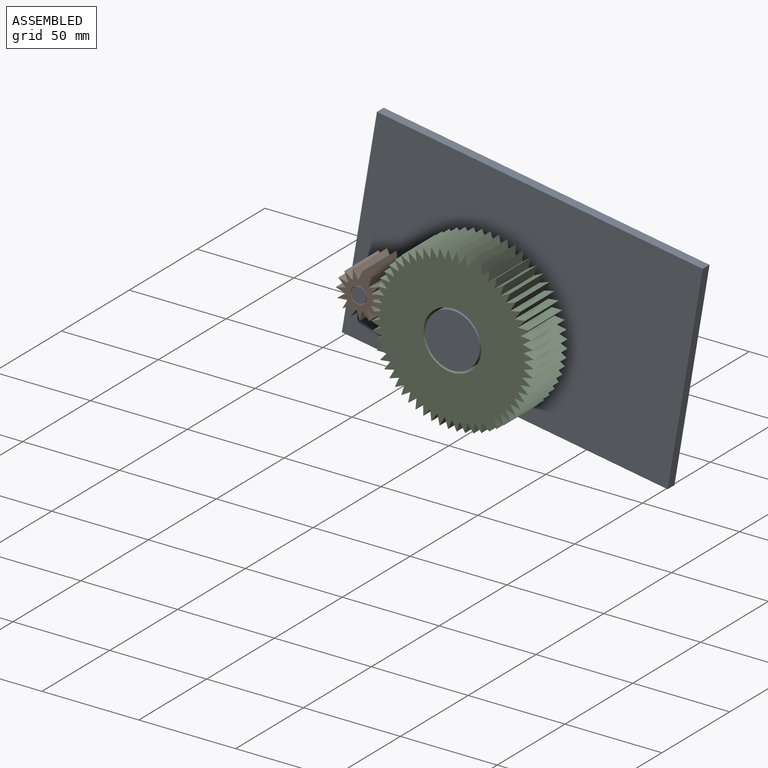
[diagram: assembled view]
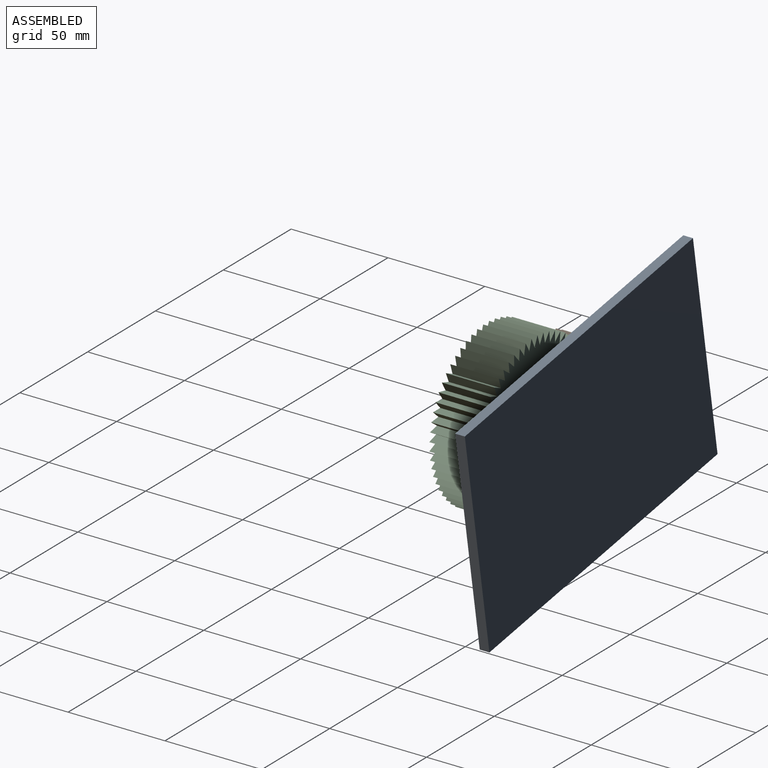
[diagram: assembled view, second angle]
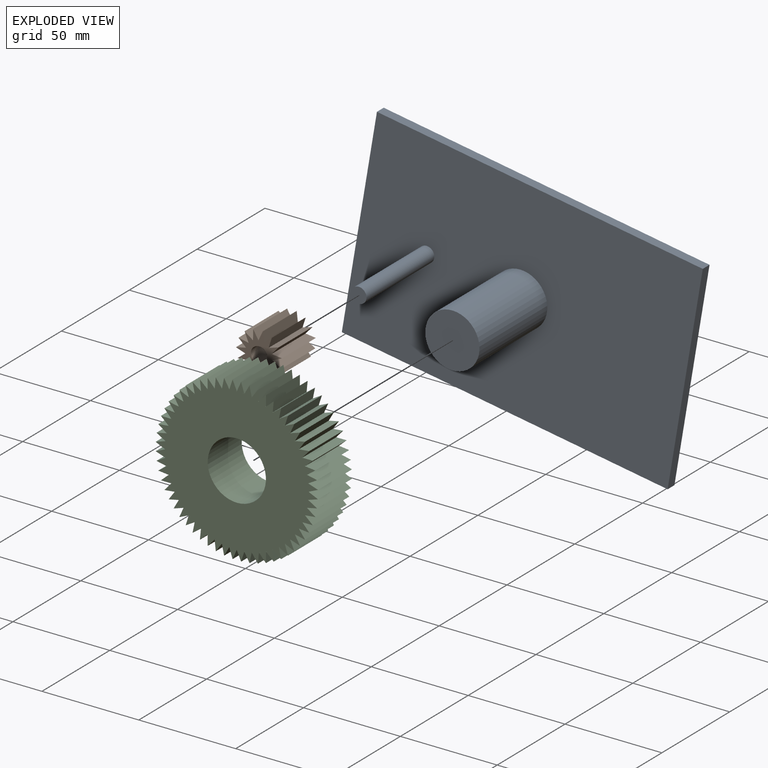
[diagram: exploded view]
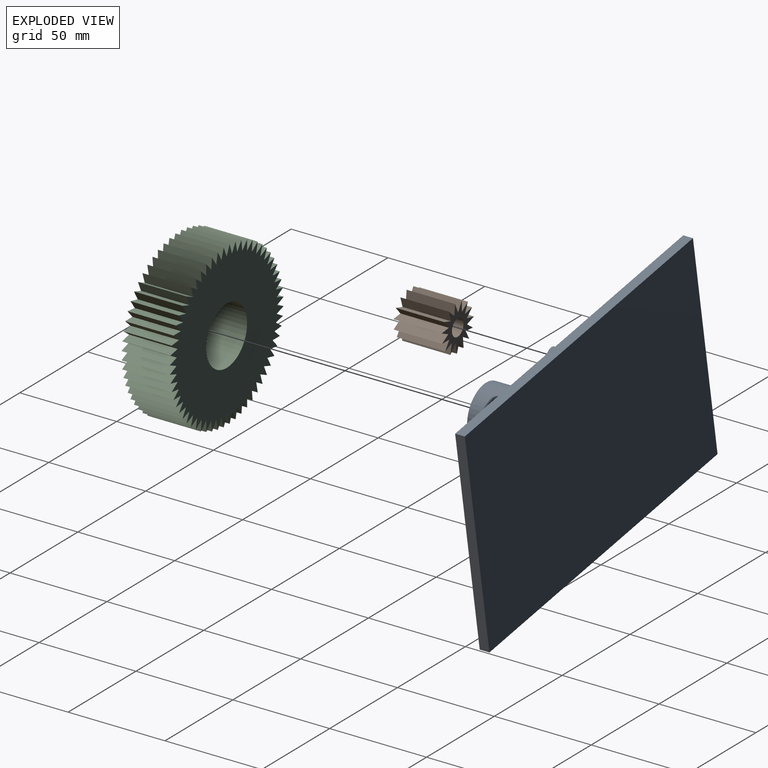
[diagram: exploded view, second angle]
ASSEMBLY  parts=3 mates=4
PART A: 10 faces, bbox 170.6x55x109.2 mm
  f0: plane 109.18x5mm, normal (1,0,0), area 545.9mm2, adj f1,f3,f4,f5
  f1: plane 170.56x5mm, normal (0,0,1), area 852.8mm2, adj f0,f2,f4,f5
  f2: plane 109.18x5mm, normal (-1,0,0), area 545.9mm2, adj f1,f3,f4,f5
  f3: plane 170.56x5mm, normal (0,0,-1), area 852.8mm2, adj f0,f2,f4,f5
  f4: plane 170.56x109.18mm, normal (0,-1,0), area 17955.5mm2, adj f0,f1,f2,f3,f6,f8
  f5: plane 170.56x109.18mm, normal (0,1,0), area 18621.6mm2, adj f0,f1,f2,f3
  f6: cylinder r=4mm len=50mm, axis (0,1,0), area 1256.6mm2, adj f4,f7
  f7: plane 8x8mm, normal (0,-1,0), area 50.3mm2, adj f6
  f8: cylinder r=14mm len=50mm, axis (0,1,0), area 4398.2mm2, adj f4,f9
  f9: plane 28x28mm, normal (0,-1,0), area 615.8mm2, adj f8
PART B: 78 faces, bbox 23.8x25x23.6 mm
  f0: cylinder r=6.94mm len=25mm, axis (0,1,0), area 3.8mm2, adj f15,f16,f18,f73
  f1: cylinder r=6.94mm len=25mm, axis (0,1,0), area 3.8mm2, adj f15,f16,f69,f74
  f2: cylinder r=6.94mm len=25mm, axis (0,1,0), area 3.8mm2, adj f15,f16,f65,f70
  f3: cylinder r=6.94mm len=25mm, axis (0,1,0), area 3.8mm2, adj f15,f16,f61,f66
  f4: cylinder r=6.94mm len=25mm, axis (0,1,0), area 3.8mm2, adj f15,f16,f57,f62
  f5: cylinder r=6.94mm len=25mm, axis (0,1,0), area 3.8mm2, adj f15,f16,f53,f58
  f6: cylinder r=6.94mm len=25mm, axis (0,1,0), area 3.8mm2, adj f15,f16,f49,f54
  f7: cylinder r=6.94mm len=25mm, axis (0,1,0), area 3.8mm2, adj f15,f16,f45,f50
  f8: cylinder r=6.94mm len=25mm, axis (0,1,0), area 3.8mm2, adj f15,f16,f41,f46
  f9: cylinder r=6.94mm len=25mm, axis (0,1,0), area 3.8mm2, adj f15,f16,f37,f42
  f10: cylinder r=6.94mm len=25mm, axis (0,1,0), area 3.8mm2, adj f15,f16,f33,f38
  f11: cylinder r=6.94mm len=25mm, axis (0,1,0), area 3.8mm2, adj f15,f16,f29,f34
  f12: cylinder r=6.94mm len=25mm, axis (0,1,0), area 3.8mm2, adj f15,f16,f25,f30
  f13: cylinder r=6.94mm len=25mm, axis (0,1,0), area 3.8mm2, adj f15,f16,f21,f26
  f14: cylinder r=6.94mm len=25mm, axis (0,1,0), area 3.8mm2, adj f15,f16,f17,f22
  f15: plane 23.75x23.62mm, normal (0,-1,0), area 202.3mm2, adj f0,f1,f2,f3,f4,f5,f6,f7
  f16: plane 23.75x23.62mm, normal (0,1,0), area 202.3mm2, adj f0,f1,f2,f3,f4,f5,f6,f7
  f17: plane 25x0.13mm, normal (0.01,0,-1), area 3.1mm2, adj f14,f15,f16,f19
  f18: plane 25x0.03mm, normal (0.01,0,-1), area 0.7mm2, adj f0,f15,f16,f20
  f19: plane 25x5.13mm, normal (0.96,0,0.27), area 133.2mm2, adj f15,f16,f17,f20
  f20: plane 25x5.14mm, normal (-0.96,0,0.27), area 133.6mm2, adj f15,f16,f18,f19
  f21: plane 25x0.12mm, normal (-0.4,0,-0.92), area 3.1mm2, adj f13,f15,f16,f23
  f22: plane 25x0.03mm, normal (-0.4,0,-0.92), area 0.7mm2, adj f14,f15,f16,f24
  f23: plane 25x5.27mm, normal (0.99,0,-0.14), area 133.2mm2, adj f15,f16,f21,f24
  f24: plane 25x4.11mm, normal (-0.77,0,0.64), area 133.6mm2, adj f15,f16,f22,f23
  f25: plane 25x0.09mm, normal (-0.74,0,-0.67), area 3.1mm2, adj f12,f15,f16,f27
  f26: plane 25x0.02mm, normal (-0.74,0,-0.67), area 0.7mm2, adj f13,f15,f16,f28
  f27: plane 25x4.51mm, normal (0.85,0,-0.53), area 133.2mm2, adj f15,f16,f25,f28
  f28: plane 25x4.79mm, normal (-0.44,0,0.9), area 133.6mm2, adj f15,f16,f26,f27
  f29: plane 25x0.12mm, normal (-0.95,0,-0.32), area 3.1mm2, adj f11,f15,f16,f31
  f30: plane 25x0.03mm, normal (-0.95,0,-0.32), area 0.7mm2, adj f12,f15,f16,f32
  f31: plane 25x4.43mm, normal (0.56,0,-0.83), area 133.2mm2, adj f15,f16,f29,f32
  f32: plane 25x5.34mm, normal (-0.04,0,1), area 133.6mm2, adj f15,f16,f30,f31
  f33: plane 25x0.13mm, normal (-1,0,0.1), area 3.1mm2, adj f10,f15,f16,f35
  f34: plane 25x0.03mm, normal (-1,0,0.1), area 0.7mm2, adj f11,f15,f16,f36
  f35: plane 25x5.25mm, normal (0.17,0,-0.99), area 133.2mm2, adj f15,f16,f33,f36
  f36: plane 25x4.97mm, normal (0.37,0,0.93), area 133.6mm2, adj f15,f16,f34,f35
  f37: plane 25x0.11mm, normal (-0.87,0,0.49), area 3.1mm2, adj f9,f15,f16,f39
  f38: plane 25x0.02mm, normal (-0.87,0,0.49), area 0.7mm2, adj f10,f15,f16,f40
  f39: plane 25x5.16mm, normal (-0.25,0,-0.97), area 133.2mm2, adj f15,f16,f37,f40
  f40: plane 25x3.82mm, normal (0.72,0,0.7), area 133.6mm2, adj f15,f16,f38,f39
  f41: plane 25x0.1mm, normal (-0.59,0,0.81), area 3.1mm2, adj f8,f15,f16,f43
  f42: plane 25x0.02mm, normal (-0.59,0,0.81), area 0.7mm2, adj f9,f15,f16,f44
  f43: plane 25x4.19mm, normal (-0.62,0,-0.79), area 133.2mm2, adj f15,f16,f41,f44
  f44: plane 25x5.01mm, normal (0.94,0,0.35), area 133.6mm2, adj f15,f16,f42,f43
  f45: plane 25x0.12mm, normal (-0.21,0,0.98), area 3.1mm2, adj f7,f15,f16,f47
  f46: plane 25x0.03mm, normal (-0.21,0,0.98), area 0.7mm2, adj f8,f15,f16,f48
  f47: plane 25x4.71mm, normal (-0.88,0,-0.47), area 133.2mm2, adj f15,f16,f45,f48
  f48: plane 25x5.33mm, normal (1,0,-0.06), area 133.6mm2, adj f15,f16,f46,f47
  f49: plane 25x0.12mm, normal (0.2,0,0.98), area 3.1mm2, adj f6,f15,f16,f51
  f50: plane 25x0.03mm, normal (0.2,0,0.98), area 0.7mm2, adj f7,f15,f16,f52
  f51: plane 25x5.31mm, normal (-1,0,-0.07), area 133.2mm2, adj f15,f16,f49,f52
  f52: plane 25x4.73mm, normal (0.89,0,-0.46), area 133.6mm2, adj f15,f16,f50,f51
  f53: plane 25x0.1mm, normal (0.58,0,0.81), area 3.1mm2, adj f5,f15,f16,f55
  f54: plane 25x0.02mm, normal (0.58,0,0.81), area 0.7mm2, adj f6,f15,f16,f56
  f55: plane 25x5mm, normal (-0.94,0,0.35), area 133.2mm2, adj f15,f16,f53,f56
  f56: plane 25x4.19mm, normal (0.62,0,-0.78), area 133.6mm2, adj f15,f16,f54,f55
  f57: plane 25x0.11mm, normal (0.86,0,0.51), area 3.1mm2, adj f4,f15,f16,f59
  f58: plane 25x0.02mm, normal (0.86,0,0.51), area 0.7mm2, adj f5,f15,f16,f60
  f59: plane 25x3.82mm, normal (-0.72,0,0.7), area 133.2mm2, adj f15,f16,f57,f60
  f60: plane 25x5.18mm, normal (0.25,0,-0.97), area 133.6mm2, adj f15,f16,f58,f59
  f61: plane 25x0.12mm, normal (0.99,0,0.11), area 3.1mm2, adj f3,f15,f16,f63
  f62: plane 25x0.03mm, normal (0.99,0,0.11), area 0.7mm2, adj f4,f15,f16,f64
  f63: plane 25x4.95mm, normal (-0.37,0,0.93), area 133.2mm2, adj f15,f16,f61,f64
  f64: plane 25x5.27mm, normal (-0.17,0,-0.99), area 133.6mm2, adj f15,f16,f62,f63
  f65: plane 25x0.12mm, normal (0.95,0,-0.3), area 3.1mm2, adj f2,f15,f16,f67
  f66: plane 25x0.03mm, normal (0.95,0,-0.3), area 0.7mm2, adj f3,f15,f16,f68
  f67: plane 25x5.32mm, normal (0.04,0,1), area 133.2mm2, adj f15,f16,f65,f68
  f68: plane 25x4.45mm, normal (-0.55,0,-0.83), area 133.6mm2, adj f15,f16,f66,f67
  f69: plane 25x0.09mm, normal (0.75,0,-0.66), area 3.1mm2, adj f1,f15,f16,f71
  f70: plane 25x0.02mm, normal (0.75,0,-0.66), area 0.7mm2, adj f2,f15,f16,f72
  f71: plane 25x4.78mm, normal (0.44,0,0.9), area 133.2mm2, adj f15,f16,f69,f72
  f72: plane 25x4.52mm, normal (-0.85,0,-0.53), area 133.6mm2, adj f15,f16,f70,f71
  f73: plane 25x0.11mm, normal (0.41,0,-0.91), area 3.1mm2, adj f0,f15,f16,f75
  f74: plane 25x0.03mm, normal (0.41,0,-0.91), area 0.7mm2, adj f1,f15,f16,f76
  f75: plane 25x4.09mm, normal (0.77,0,0.64), area 133.2mm2, adj f15,f16,f73,f76
  f76: plane 25x5.29mm, normal (-0.99,0,-0.14), area 133.6mm2, adj f15,f16,f74,f75
  f77: cylinder r=4.25mm len=25mm, axis (0,1,0), area 667.6mm2, adj f15,f16
PART C: 243 faces, bbox 83.8x25x83.8 mm
  f0: cylinder r=37mm len=25mm, axis (0,1,0), area 19mm2, adj f60,f61,f63,f239
  f1: cylinder r=37mm len=25mm, axis (0,1,0), area 19mm2, adj f60,f61,f236,f240
  f2: cylinder r=37mm len=25mm, axis (0,1,0), area 19mm2, adj f60,f61,f233,f237
  f3: cylinder r=37mm len=25mm, axis (0,1,0), area 19mm2, adj f60,f61,f230,f234
  f4: cylinder r=37mm len=25mm, axis (0,1,0), area 19mm2, adj f60,f61,f227,f231
  f5: cylinder r=37mm len=25mm, axis (0,1,0), area 19mm2, adj f60,f61,f224,f228
  f6: cylinder r=37mm len=25mm, axis (0,1,0), area 19mm2, adj f60,f61,f221,f225
  f7: cylinder r=37mm len=25mm, axis (0,1,0), area 19mm2, adj f60,f61,f218,f222
  f8: cylinder r=37mm len=25mm, axis (0,1,0), area 19mm2, adj f60,f61,f215,f219
  f9: cylinder r=37mm len=25mm, axis (0,1,0), area 19mm2, adj f60,f61,f212,f216
  f10: cylinder r=37mm len=25mm, axis (0,1,0), area 19mm2, adj f60,f61,f209,f213
  f11: cylinder r=37mm len=25mm, axis (0,1,0), area 19mm2, adj f60,f61,f206,f210
  f12: cylinder r=37mm len=25mm, axis (0,1,0), area 19mm2, adj f60,f61,f203,f207
  f13: cylinder r=37mm len=25mm, axis (0,1,0), area 19mm2, adj f60,f61,f200,f204
  f14: cylinder r=37mm len=25mm, axis (0,1,0), area 19mm2, adj f60,f61,f197,f201
  f15: cylinder r=37mm len=25mm, axis (0,1,0), area 19mm2, adj f60,f61,f194,f198
  f16: cylinder r=37mm len=25mm, axis (0,1,0), area 19mm2, adj f60,f61,f191,f195
  f17: cylinder r=37mm len=25mm, axis (0,1,0), area 19mm2, adj f60,f61,f188,f192
  f18: cylinder r=37mm len=25mm, axis (0,1,0), area 19mm2, adj f60,f61,f185,f189
  f19: cylinder r=37mm len=25mm, axis (0,1,0), area 19mm2, adj f60,f61,f182,f186
  f20: cylinder r=37mm len=25mm, axis (0,1,0), area 19mm2, adj f60,f61,f179,f183
  f21: cylinder r=37mm len=25mm, axis (0,1,0), area 19mm2, adj f60,f61,f176,f180
  f22: cylinder r=37mm len=25mm, axis (0,1,0), area 19mm2, adj f60,f61,f173,f177
  f23: cylinder r=37mm len=25mm, axis (0,1,0), area 19mm2, adj f60,f61,f170,f174
  f24: cylinder r=37mm len=25mm, axis (0,1,0), area 19mm2, adj f60,f61,f167,f171
  f25: cylinder r=37mm len=25mm, axis (0,1,0), area 19mm2, adj f60,f61,f164,f168
  f26: cylinder r=37mm len=25mm, axis (0,1,0), area 19mm2, adj f60,f61,f161,f165
  f27: cylinder r=37mm len=25mm, axis (0,1,0), area 19mm2, adj f60,f61,f158,f162
  f28: cylinder r=37mm len=25mm, axis (0,1,0), area 19mm2, adj f60,f61,f155,f159
  f29: cylinder r=37mm len=25mm, axis (0,1,0), area 19mm2, adj f60,f61,f152,f156
  f30: cylinder r=37mm len=25mm, axis (0,1,0), area 19mm2, adj f60,f61,f149,f153
  f31: cylinder r=37mm len=25mm, axis (0,1,0), area 19mm2, adj f60,f61,f146,f150
  f32: cylinder r=37mm len=25mm, axis (0,1,0), area 19mm2, adj f60,f61,f143,f147
  f33: cylinder r=37mm len=25mm, axis (0,1,0), area 19mm2, adj f60,f61,f140,f144
  f34: cylinder r=37mm len=25mm, axis (0,1,0), area 19mm2, adj f60,f61,f137,f141
  f35: cylinder r=37mm len=25mm, axis (0,1,0), area 19mm2, adj f60,f61,f134,f138
  f36: cylinder r=37mm len=25mm, axis (0,1,0), area 19mm2, adj f60,f61,f131,f135
  f37: cylinder r=37mm len=25mm, axis (0,1,0), area 19mm2, adj f60,f61,f128,f132
  f38: cylinder r=37mm len=25mm, axis (0,1,0), area 19mm2, adj f60,f61,f125,f129
  f39: cylinder r=37mm len=25mm, axis (0,1,0), area 19mm2, adj f60,f61,f122,f126
  f40: cylinder r=37mm len=25mm, axis (0,1,0), area 19mm2, adj f60,f61,f119,f123
  f41: cylinder r=37mm len=25mm, axis (0,1,0), area 19mm2, adj f60,f61,f116,f120
  f42: cylinder r=37mm len=25mm, axis (0,1,0), area 19mm2, adj f60,f61,f113,f117
  f43: cylinder r=37mm len=25mm, axis (0,1,0), area 19mm2, adj f60,f61,f110,f114
  f44: cylinder r=37mm len=25mm, axis (0,1,0), area 19mm2, adj f60,f61,f107,f111
  f45: cylinder r=37mm len=25mm, axis (0,1,0), area 19mm2, adj f60,f61,f104,f108
  f46: cylinder r=37mm len=25mm, axis (0,1,0), area 19mm2, adj f60,f61,f101,f105
  f47: cylinder r=37mm len=25mm, axis (0,1,0), area 19mm2, adj f60,f61,f98,f102
  f48: cylinder r=37mm len=25mm, axis (0,1,0), area 19mm2, adj f60,f61,f95,f99
  f49: cylinder r=37mm len=25mm, axis (0,1,0), area 19mm2, adj f60,f61,f92,f96
  f50: cylinder r=37mm len=25mm, axis (0,1,0), area 19mm2, adj f60,f61,f89,f93
  f51: cylinder r=37mm len=25mm, axis (0,1,0), area 19mm2, adj f60,f61,f86,f90
  f52: cylinder r=37mm len=25mm, axis (0,1,0), area 19mm2, adj f60,f61,f83,f87
  f53: cylinder r=37mm len=25mm, axis (0,1,0), area 19mm2, adj f60,f61,f80,f84
  f54: cylinder r=37mm len=25mm, axis (0,1,0), area 19mm2, adj f60,f61,f77,f81
  f55: cylinder r=37mm len=25mm, axis (0,1,0), area 19mm2, adj f60,f61,f74,f78
  f56: cylinder r=37mm len=25mm, axis (0,1,0), area 19mm2, adj f60,f61,f71,f75
  f57: cylinder r=37mm len=25mm, axis (0,1,0), area 19mm2, adj f60,f61,f68,f72
  f58: cylinder r=37mm len=25mm, axis (0,1,0), area 19mm2, adj f60,f61,f65,f69
  f59: cylinder r=37mm len=25mm, axis (0,1,0), area 19mm2, adj f60,f61,f62,f66
  f60: plane 83.84x83.84mm, normal (0,-1,0), area 4168.6mm2, adj f0,f1,f2,f3,f4,f5,f6,f7
  f61: plane 83.84x83.84mm, normal (0,1,0), area 4168.6mm2, adj f0,f1,f2,f3,f4,f5,f6,f7
  f62: plane 25x0.75mm, normal (0.07,0,-1), area 18.8mm2, adj f59,f60,f61,f64
  f63: plane 25x5.12mm, normal (-0.95,0,0.31), area 134.7mm2, adj f0,f60,f61,f64
  f64: plane 25x4.88mm, normal (0.91,0,0.41), area 133.7mm2, adj f60,f61,f62,f63
  f65: plane 25x0.75mm, normal (-0.04,0,-1), area 18.8mm2, adj f58,f60,f61,f67
  f66: plane 25x4.92mm, normal (-0.91,0,0.41), area 134.7mm2, adj f59,f60,f61,f67
  f67: plane 25x5.08mm, normal (0.95,0,0.31), area 133.7mm2, adj f60,f61,f65,f66
  f68: plane 25x0.75mm, normal (-0.14,0,-0.99), area 18.8mm2, adj f57,f60,f61,f70
  f69: plane 25x4.67mm, normal (-0.87,0,0.5), area 134.7mm2, adj f58,f60,f61,f70
  f70: plane 25x5.23mm, normal (0.98,0,0.21), area 133.7mm2, adj f60,f61,f68,f69
  f71: plane 25x0.73mm, normal (-0.24,0,-0.97), area 18.8mm2, adj f56,f60,f61,f73
  f72: plane 25x4.36mm, normal (-0.81,0,0.59), area 134.7mm2, adj f57,f60,f61,f73
  f73: plane 25x5.32mm, normal (0.99,0,0.11), area 133.7mm2, adj f60,f61,f71,f72
  f74: plane 25x0.71mm, normal (-0.34,0,-0.94), area 18.8mm2, adj f55,f60,f61,f76
  f75: plane 25x4mm, normal (-0.74,0,0.67), area 134.7mm2, adj f56,f60,f61,f76
  f76: plane 25x5.35mm, normal (1,0,0), area 133.7mm2, adj f60,f61,f74,f75
  f77: plane 25x0.68mm, normal (-0.44,0,-0.9), area 18.8mm2, adj f54,f60,f61,f79
  f78: plane 25x4mm, normal (-0.67,0,0.74), area 134.7mm2, adj f55,f60,f61,f79
  f79: plane 25x5.32mm, normal (0.99,0,-0.1), area 133.7mm2, adj f60,f61,f77,f78
  f80: plane 25x0.64mm, normal (-0.53,0,-0.85), area 18.8mm2, adj f53,f60,f61,f82
  f81: plane 25x4.36mm, normal (-0.59,0,0.81), area 134.7mm2, adj f54,f60,f61,f82
  f82: plane 25x5.24mm, normal (0.98,0,-0.2), area 133.7mm2, adj f60,f61,f80,f81
  f83: plane 25x0.59mm, normal (-0.62,0,-0.79), area 18.8mm2, adj f52,f60,f61,f85
  f84: plane 25x4.66mm, normal (-0.5,0,0.87), area 134.7mm2, adj f53,f60,f61,f85
  f85: plane 25x5.1mm, normal (0.95,0,-0.3), area 133.7mm2, adj f60,f61,f83,f84
  f86: plane 25x0.54mm, normal (-0.7,0,-0.72), area 18.8mm2, adj f51,f60,f61,f88
  f87: plane 25x4.92mm, normal (-0.41,0,0.91), area 134.7mm2, adj f52,f60,f61,f88
  f88: plane 25x4.9mm, normal (0.92,0,-0.4), area 133.7mm2, adj f60,f61,f86,f87
  f89: plane 25x0.58mm, normal (-0.77,0,-0.64), area 18.8mm2, adj f50,f60,f61,f91
  f90: plane 25x5.12mm, normal (-0.31,0,0.95), area 134.7mm2, adj f51,f60,f61,f91
  f91: plane 25x4.64mm, normal (0.87,0,-0.5), area 133.7mm2, adj f60,f61,f89,f90
  f92: plane 25x0.63mm, normal (-0.83,0,-0.56), area 18.8mm2, adj f49,f60,f61,f94
  f93: plane 25x5.27mm, normal (-0.21,0,0.98), area 134.7mm2, adj f50,f60,f61,f94
  f94: plane 25x4.34mm, normal (0.81,0,-0.58), area 133.7mm2, adj f60,f61,f92,f93
  f95: plane 25x0.67mm, normal (-0.88,0,-0.47), area 18.8mm2, adj f48,f60,f61,f97
  f96: plane 25x5.36mm, normal (-0.1,0,0.99), area 134.7mm2, adj f49,f60,f61,f97
  f97: plane 25x3.99mm, normal (0.75,0,-0.67), area 133.7mm2, adj f60,f61,f95,f96
  f98: plane 25x0.7mm, normal (-0.93,0,-0.37), area 18.8mm2, adj f47,f60,f61,f100
  f99: plane 25x5.39mm, normal (0,0,1), area 134.7mm2, adj f48,f60,f61,f100
  f100: plane 25x3.96mm, normal (0.67,0,-0.74), area 133.7mm2, adj f60,f61,f98,f99
  f101: plane 25x0.72mm, normal (-0.96,0,-0.27), area 18.8mm2, adj f46,f60,f61,f103
  f102: plane 25x5.36mm, normal (0.1,0,0.99), area 134.7mm2, adj f47,f60,f61,f103
  f103: plane 25x4.31mm, normal (0.59,0,-0.81), area 133.7mm2, adj f60,f61,f101,f102
  f104: plane 25x0.74mm, normal (-0.99,0,-0.17), area 18.8mm2, adj f45,f60,f61,f106
  f105: plane 25x5.27mm, normal (0.21,0,0.98), area 134.7mm2, adj f46,f60,f61,f106
  f106: plane 25x4.62mm, normal (0.5,0,-0.86), area 133.7mm2, adj f60,f61,f104,f105
  f107: plane 25x0.75mm, normal (-1,0,-0.07), area 18.8mm2, adj f44,f60,f61,f109
  f108: plane 25x5.12mm, normal (0.31,0,0.95), area 134.7mm2, adj f45,f60,f61,f109
  f109: plane 25x4.88mm, normal (0.41,0,-0.91), area 133.7mm2, adj f60,f61,f107,f108
  f110: plane 25x0.75mm, normal (-1,0,0.04), area 18.8mm2, adj f43,f60,f61,f112
  f111: plane 25x4.92mm, normal (0.41,0,0.91), area 134.7mm2, adj f44,f60,f61,f112
  f112: plane 25x5.08mm, normal (0.31,0,-0.95), area 133.7mm2, adj f60,f61,f110,f111
  f113: plane 25x0.75mm, normal (-0.99,0,0.14), area 18.8mm2, adj f42,f60,f61,f115
  f114: plane 25x4.67mm, normal (0.5,0,0.87), area 134.7mm2, adj f43,f60,f61,f115
  f115: plane 25x5.23mm, normal (0.21,0,-0.98), area 133.7mm2, adj f60,f61,f113,f114
  f116: plane 25x0.73mm, normal (-0.97,0,0.24), area 18.8mm2, adj f41,f60,f61,f118
  f117: plane 25x4.36mm, normal (0.59,0,0.81), area 134.7mm2, adj f42,f60,f61,f118
  f118: plane 25x5.32mm, normal (0.11,0,-0.99), area 133.7mm2, adj f60,f61,f116,f117
  f119: plane 25x0.71mm, normal (-0.94,0,0.34), area 18.8mm2, adj f40,f60,f61,f121
  f120: plane 25x4mm, normal (0.67,0,0.74), area 134.7mm2, adj f41,f60,f61,f121
  f121: plane 25x5.35mm, normal (0,0,-1), area 133.7mm2, adj f60,f61,f119,f120
  f122: plane 25x0.68mm, normal (-0.9,0,0.44), area 18.8mm2, adj f39,f60,f61,f124
  f123: plane 25x4mm, normal (0.74,0,0.67), area 134.7mm2, adj f40,f60,f61,f124
  f124: plane 25x5.32mm, normal (-0.1,0,-0.99), area 133.7mm2, adj f60,f61,f122,f123
  f125: plane 25x0.64mm, normal (-0.85,0,0.53), area 18.8mm2, adj f38,f60,f61,f127
  f126: plane 25x4.36mm, normal (0.81,0,0.59), area 134.7mm2, adj f39,f60,f61,f127
  f127: plane 25x5.24mm, normal (-0.2,0,-0.98), area 133.7mm2, adj f60,f61,f125,f126
  f128: plane 25x0.59mm, normal (-0.79,0,0.62), area 18.8mm2, adj f37,f60,f61,f130
  f129: plane 25x4.66mm, normal (0.87,0,0.5), area 134.7mm2, adj f38,f60,f61,f130
  f130: plane 25x5.1mm, normal (-0.3,0,-0.95), area 133.7mm2, adj f60,f61,f128,f129
  f131: plane 25x0.54mm, normal (-0.72,0,0.7), area 18.8mm2, adj f36,f60,f61,f133
  f132: plane 25x4.92mm, normal (0.91,0,0.41), area 134.7mm2, adj f37,f60,f61,f133
  f133: plane 25x4.9mm, normal (-0.4,0,-0.92), area 133.7mm2, adj f60,f61,f131,f132
  f134: plane 25x0.58mm, normal (-0.64,0,0.77), area 18.8mm2, adj f35,f60,f61,f136
  f135: plane 25x5.12mm, normal (0.95,0,0.31), area 134.7mm2, adj f36,f60,f61,f136
  f136: plane 25x4.64mm, normal (-0.5,0,-0.87), area 133.7mm2, adj f60,f61,f134,f135
  f137: plane 25x0.63mm, normal (-0.56,0,0.83), area 18.8mm2, adj f34,f60,f61,f139
  f138: plane 25x5.27mm, normal (0.98,0,0.21), area 134.7mm2, adj f35,f60,f61,f139
  f139: plane 25x4.34mm, normal (-0.58,0,-0.81), area 133.7mm2, adj f60,f61,f137,f138
  f140: plane 25x0.67mm, normal (-0.47,0,0.88), area 18.8mm2, adj f33,f60,f61,f142
  f141: plane 25x5.36mm, normal (0.99,0,0.1), area 134.7mm2, adj f34,f60,f61,f142
  f142: plane 25x3.99mm, normal (-0.67,0,-0.75), area 133.7mm2, adj f60,f61,f140,f141
  f143: plane 25x0.7mm, normal (-0.37,0,0.93), area 18.8mm2, adj f32,f60,f61,f145
  f144: plane 25x5.39mm, normal (1,0,0), area 134.7mm2, adj f33,f60,f61,f145
  f145: plane 25x3.96mm, normal (-0.74,0,-0.67), area 133.7mm2, adj f60,f61,f143,f144
  f146: plane 25x0.72mm, normal (-0.27,0,0.96), area 18.8mm2, adj f31,f60,f61,f148
  f147: plane 25x5.36mm, normal (0.99,0,-0.1), area 134.7mm2, adj f32,f60,f61,f148
  f148: plane 25x4.31mm, normal (-0.81,0,-0.59), area 133.7mm2, adj f60,f61,f146,f147
  f149: plane 25x0.74mm, normal (-0.17,0,0.99), area 18.8mm2, adj f30,f60,f61,f151
  f150: plane 25x5.27mm, normal (0.98,0,-0.21), area 134.7mm2, adj f31,f60,f61,f151
  f151: plane 25x4.62mm, normal (-0.86,0,-0.5), area 133.7mm2, adj f60,f61,f149,f150
  f152: plane 25x0.75mm, normal (-0.07,0,1), area 18.8mm2, adj f29,f60,f61,f154
  f153: plane 25x5.12mm, normal (0.95,0,-0.31), area 134.7mm2, adj f30,f60,f61,f154
  f154: plane 25x4.88mm, normal (-0.91,0,-0.41), area 133.7mm2, adj f60,f61,f152,f153
  f155: plane 25x0.75mm, normal (0.04,0,1), area 18.8mm2, adj f28,f60,f61,f157
  f156: plane 25x4.92mm, normal (0.91,0,-0.41), area 134.7mm2, adj f29,f60,f61,f157
  f157: plane 25x5.08mm, normal (-0.95,0,-0.31), area 133.7mm2, adj f60,f61,f155,f156
  f158: plane 25x0.75mm, normal (0.14,0,0.99), area 18.8mm2, adj f27,f60,f61,f160
  f159: plane 25x4.67mm, normal (0.87,0,-0.5), area 134.7mm2, adj f28,f60,f61,f160
  f160: plane 25x5.23mm, normal (-0.98,0,-0.21), area 133.7mm2, adj f60,f61,f158,f159
  f161: plane 25x0.73mm, normal (0.24,0,0.97), area 18.8mm2, adj f26,f60,f61,f163
  f162: plane 25x4.36mm, normal (0.81,0,-0.59), area 134.7mm2, adj f27,f60,f61,f163
  f163: plane 25x5.32mm, normal (-0.99,0,-0.11), area 133.7mm2, adj f60,f61,f161,f162
  f164: plane 25x0.71mm, normal (0.34,0,0.94), area 18.8mm2, adj f25,f60,f61,f166
  f165: plane 25x4mm, normal (0.74,0,-0.67), area 134.7mm2, adj f26,f60,f61,f166
  f166: plane 25x5.35mm, normal (-1,0,0), area 133.7mm2, adj f60,f61,f164,f165
  f167: plane 25x0.68mm, normal (0.44,0,0.9), area 18.8mm2, adj f24,f60,f61,f169
  f168: plane 25x4mm, normal (0.67,0,-0.74), area 134.7mm2, adj f25,f60,f61,f169
  f169: plane 25x5.32mm, normal (-0.99,0,0.1), area 133.7mm2, adj f60,f61,f167,f168
  f170: plane 25x0.64mm, normal (0.53,0,0.85), area 18.8mm2, adj f23,f60,f61,f172
  f171: plane 25x4.36mm, normal (0.59,0,-0.81), area 134.7mm2, adj f24,f60,f61,f172
  f172: plane 25x5.24mm, normal (-0.98,0,0.2), area 133.7mm2, adj f60,f61,f170,f171
  f173: plane 25x0.59mm, normal (0.62,0,0.79), area 18.8mm2, adj f22,f60,f61,f175
  f174: plane 25x4.66mm, normal (0.5,0,-0.87), area 134.7mm2, adj f23,f60,f61,f175
  f175: plane 25x5.1mm, normal (-0.95,0,0.3), area 133.7mm2, adj f60,f61,f173,f174
  f176: plane 25x0.54mm, normal (0.7,0,0.72), area 18.8mm2, adj f21,f60,f61,f178
  f177: plane 25x4.92mm, normal (0.41,0,-0.91), area 134.7mm2, adj f22,f60,f61,f178
  f178: plane 25x4.9mm, normal (-0.92,0,0.4), area 133.7mm2, adj f60,f61,f176,f177
  f179: plane 25x0.58mm, normal (0.77,0,0.64), area 18.8mm2, adj f20,f60,f61,f181
  f180: plane 25x5.12mm, normal (0.31,0,-0.95), area 134.7mm2, adj f21,f60,f61,f181
  f181: plane 25x4.64mm, normal (-0.87,0,0.5), area 133.7mm2, adj f60,f61,f179,f180
  f182: plane 25x0.63mm, normal (0.83,0,0.56), area 18.8mm2, adj f19,f60,f61,f184
  f183: plane 25x5.27mm, normal (0.21,0,-0.98), area 134.7mm2, adj f20,f60,f61,f184
  f184: plane 25x4.34mm, normal (-0.81,0,0.58), area 133.7mm2, adj f60,f61,f182,f183
  f185: plane 25x0.67mm, normal (0.88,0,0.47), area 18.8mm2, adj f18,f60,f61,f187
  f186: plane 25x5.36mm, normal (0.1,0,-0.99), area 134.7mm2, adj f19,f60,f61,f187
  f187: plane 25x3.99mm, normal (-0.75,0,0.67), area 133.7mm2, adj f60,f61,f185,f186
  f188: plane 25x0.7mm, normal (0.93,0,0.37), area 18.8mm2, adj f17,f60,f61,f190
  f189: plane 25x5.39mm, normal (0,0,-1), area 134.7mm2, adj f18,f60,f61,f190
  f190: plane 25x3.96mm, normal (-0.67,0,0.74), area 133.7mm2, adj f60,f61,f188,f189
  f191: plane 25x0.72mm, normal (0.96,0,0.27), area 18.8mm2, adj f16,f60,f61,f193
  f192: plane 25x5.36mm, normal (-0.1,0,-0.99), area 134.7mm2, adj f17,f60,f61,f193
  f193: plane 25x4.31mm, normal (-0.59,0,0.81), area 133.7mm2, adj f60,f61,f191,f192
  f194: plane 25x0.74mm, normal (0.99,0,0.17), area 18.8mm2, adj f15,f60,f61,f196
  f195: plane 25x5.27mm, normal (-0.21,0,-0.98), area 134.7mm2, adj f16,f60,f61,f196
  f196: plane 25x4.62mm, normal (-0.5,0,0.86), area 133.7mm2, adj f60,f61,f194,f195
  f197: plane 25x0.75mm, normal (1,0,0.07), area 18.8mm2, adj f14,f60,f61,f199
  f198: plane 25x5.12mm, normal (-0.31,0,-0.95), area 134.7mm2, adj f15,f60,f61,f199
  f199: plane 25x4.88mm, normal (-0.41,0,0.91), area 133.7mm2, adj f60,f61,f197,f198
  f200: plane 25x0.75mm, normal (1,0,-0.04), area 18.8mm2, adj f13,f60,f61,f202
  f201: plane 25x4.92mm, normal (-0.41,0,-0.91), area 134.7mm2, adj f14,f60,f61,f202
  f202: plane 25x5.08mm, normal (-0.31,0,0.95), area 133.7mm2, adj f60,f61,f200,f201
  f203: plane 25x0.75mm, normal (0.99,0,-0.14), area 18.8mm2, adj f12,f60,f61,f205
  f204: plane 25x4.67mm, normal (-0.5,0,-0.87), area 134.7mm2, adj f13,f60,f61,f205
  f205: plane 25x5.23mm, normal (-0.21,0,0.98), area 133.7mm2, adj f60,f61,f203,f204
  f206: plane 25x0.73mm, normal (0.97,0,-0.24), area 18.8mm2, adj f11,f60,f61,f208
  f207: plane 25x4.36mm, normal (-0.59,0,-0.81), area 134.7mm2, adj f12,f60,f61,f208
  f208: plane 25x5.32mm, normal (-0.11,0,0.99), area 133.7mm2, adj f60,f61,f206,f207
  f209: plane 25x0.71mm, normal (0.94,0,-0.34), area 18.8mm2, adj f10,f60,f61,f211
  f210: plane 25x4mm, normal (-0.67,0,-0.74), area 134.7mm2, adj f11,f60,f61,f211
  f211: plane 25x5.35mm, normal (0,0,1), area 133.7mm2, adj f60,f61,f209,f210
  f212: plane 25x0.68mm, normal (0.9,0,-0.44), area 18.8mm2, adj f9,f60,f61,f214
  f213: plane 25x4mm, normal (-0.74,0,-0.67), area 134.7mm2, adj f10,f60,f61,f214
  f214: plane 25x5.32mm, normal (0.1,0,0.99), area 133.7mm2, adj f60,f61,f212,f213
  f215: plane 25x0.64mm, normal (0.85,0,-0.53), area 18.8mm2, adj f8,f60,f61,f217
  f216: plane 25x4.36mm, normal (-0.81,0,-0.59), area 134.7mm2, adj f9,f60,f61,f217
  f217: plane 25x5.24mm, normal (0.2,0,0.98), area 133.7mm2, adj f60,f61,f215,f216
  f218: plane 25x0.59mm, normal (0.79,0,-0.62), area 18.8mm2, adj f7,f60,f61,f220
  f219: plane 25x4.66mm, normal (-0.87,0,-0.5), area 134.7mm2, adj f8,f60,f61,f220
  f220: plane 25x5.1mm, normal (0.3,0,0.95), area 133.7mm2, adj f60,f61,f218,f219
  f221: plane 25x0.54mm, normal (0.72,0,-0.7), area 18.8mm2, adj f6,f60,f61,f223
  f222: plane 25x4.92mm, normal (-0.91,0,-0.41), area 134.7mm2, adj f7,f60,f61,f223
  f223: plane 25x4.9mm, normal (0.4,0,0.92), area 133.7mm2, adj f60,f61,f221,f222
  f224: plane 25x0.58mm, normal (0.64,0,-0.77), area 18.8mm2, adj f5,f60,f61,f226
  f225: plane 25x5.12mm, normal (-0.95,0,-0.31), area 134.7mm2, adj f6,f60,f61,f226
  f226: plane 25x4.64mm, normal (0.5,0,0.87), area 133.7mm2, adj f60,f61,f224,f225
  f227: plane 25x0.63mm, normal (0.56,0,-0.83), area 18.8mm2, adj f4,f60,f61,f229
  f228: plane 25x5.27mm, normal (-0.98,0,-0.21), area 134.7mm2, adj f5,f60,f61,f229
  f229: plane 25x4.34mm, normal (0.58,0,0.81), area 133.7mm2, adj f60,f61,f227,f228
  f230: plane 25x0.67mm, normal (0.47,0,-0.88), area 18.8mm2, adj f3,f60,f61,f232
  f231: plane 25x5.36mm, normal (-0.99,0,-0.1), area 134.7mm2, adj f4,f60,f61,f232
  f232: plane 25x3.99mm, normal (0.67,0,0.75), area 133.7mm2, adj f60,f61,f230,f231
  f233: plane 25x0.7mm, normal (0.37,0,-0.93), area 18.8mm2, adj f2,f60,f61,f235
  f234: plane 25x5.39mm, normal (-1,0,0), area 134.7mm2, adj f3,f60,f61,f235
  f235: plane 25x3.96mm, normal (0.74,0,0.67), area 133.7mm2, adj f60,f61,f233,f234
  f236: plane 25x0.72mm, normal (0.27,0,-0.96), area 18.8mm2, adj f1,f60,f61,f238
  f237: plane 25x5.36mm, normal (-0.99,0,0.1), area 134.7mm2, adj f2,f60,f61,f238
  f238: plane 25x4.31mm, normal (0.81,0,0.59), area 133.7mm2, adj f60,f61,f236,f237
  f239: plane 25x0.74mm, normal (0.17,0,-0.99), area 18.8mm2, adj f0,f60,f61,f241
  f240: plane 25x5.27mm, normal (-0.98,0,0.21), area 134.7mm2, adj f1,f60,f61,f241
  f241: plane 25x4.62mm, normal (0.86,0,0.5), area 133.7mm2, adj f60,f61,f239,f240
  f242: cylinder r=15.03mm len=30.06mm, axis (0,1,0), area 2360.6mm2, adj f60,f61
PLACE A rot(axis=(0,1,0),9.6deg) t=(80.15,16.09,2.96)mm
PLACE B rot(axis=(0,1,0),57.3deg) t=(30.74,-13.91,11.27)mm
PLACE C t=(79.06,-13.91,3.14)mm
MATE cylindrical C.f242 <-> A.f8  axis (0,-1,0) through (79.06,-38.91,3.14)mm
MATE cylindrical B.f77 <-> A.f6  axis (0,-1,0) through (30.74,-38.91,11.27)mm
MATE revolute C.f242 <-> A.f8  axis (0,1,0) through (79.06,-13.91,3.14)mm
MATE revolute A.f6 <-> B.f77  axis (0,1,0) through (30.74,-13.91,11.27)mm
